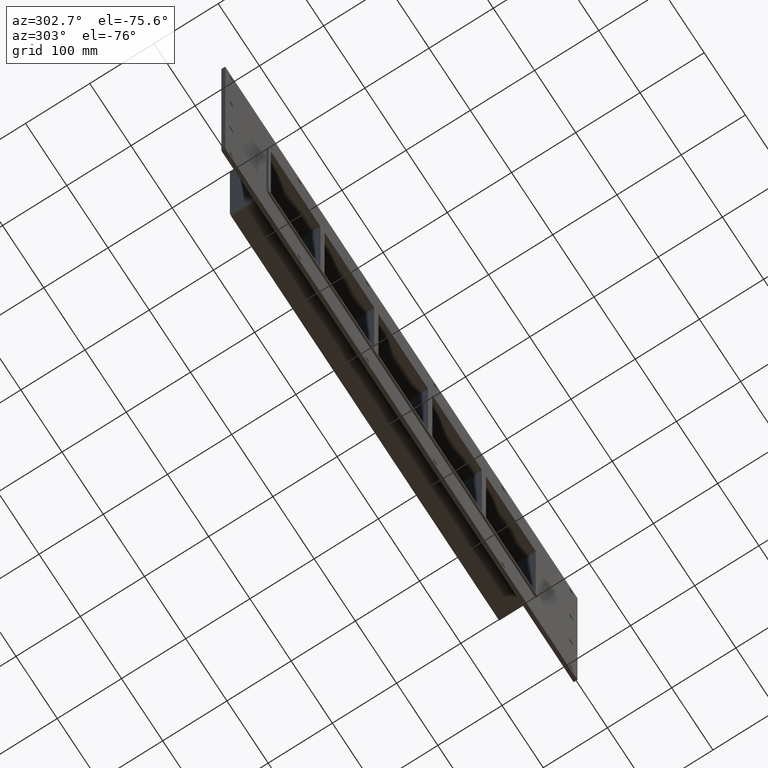
[diagram: clean part render]
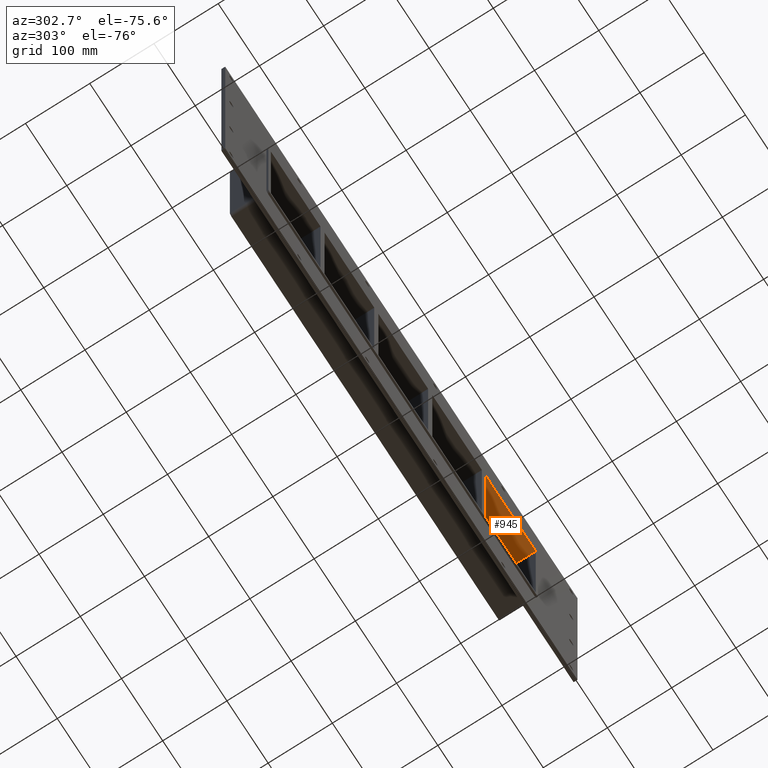
[diagram: same view with one face highlighted and labeled with its STEP entity id]
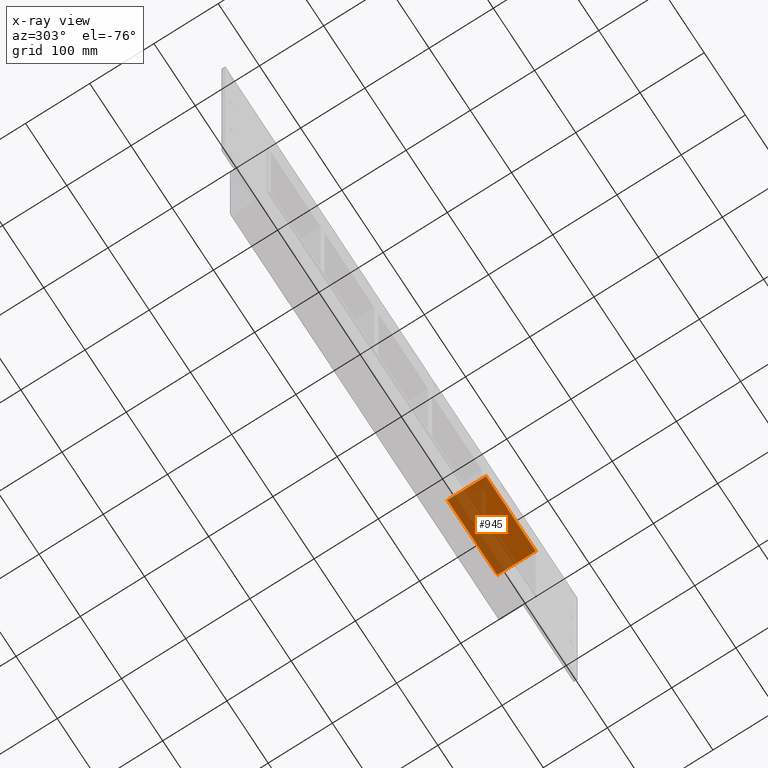
[diagram: x-ray of the same camera — body ghosted, the highlighted face saturated]
A machine part, auxiliary view. The second image highlights one B-rep face of the part: STEP entity #945.
The next image is the same camera in x-ray: the body ghosted, the highlighted face saturated — about 55% of this face is hidden behind the body in this view.
In plain terms, the highlighted planar face has unit normal (0, 0, 1).
Its self-contained STEP definition (entity closure, byte-faithful):
#561=CARTESIAN_POINT('',(200.74999999999278,-3.0,108.99999999999999));
#562=VERTEX_POINT('',#561);
#579=CARTESIAN_POINT('',(200.74999999999278,57.0,108.99999999999999));
#580=VERTEX_POINT('',#579);
#587=CARTESIAN_POINT('',(200.74999999999278,-3.0,109.0));
#588=DIRECTION('',(0.0,1.0,0.0));
#589=VECTOR('',#588,60.000000000000007);
#590=LINE('',#587,#589);
#591=EDGE_CURVE('',#562,#580,#590,.T.);
#915=CARTESIAN_POINT('',(-321.25000000000006,0.0,109.0));
#916=DIRECTION('',(0.0,0.0,1.0));
#917=DIRECTION('',(1.0,0.0,0.0));
#918=AXIS2_PLACEMENT_3D('',#915,#916,#917);
#919=PLANE('',#918);
#920=ORIENTED_EDGE('',*,*,#591,.T.);
#921=CARTESIAN_POINT('',(321.25000000000006,57.0,108.99999999999999));
#922=VERTEX_POINT('',#921);
#923=CARTESIAN_POINT('',(321.25000000000011,57.0,109.0));
#924=DIRECTION('',(-1.0,0.0,0.0));
#925=VECTOR('',#924,120.50000000000736);
#926=LINE('',#923,#925);
#927=EDGE_CURVE('',#922,#580,#926,.T.);
#928=ORIENTED_EDGE('',*,*,#927,.F.);
#929=CARTESIAN_POINT('',(321.25000000000006,-3.0,108.99999999999999));
#930=VERTEX_POINT('',#929);
#931=CARTESIAN_POINT('',(321.25000000000006,-3.0,109.0));
#932=DIRECTION('',(0.0,1.0,0.0));
#933=VECTOR('',#932,60.0);
#934=LINE('',#931,#933);
#935=EDGE_CURVE('',#930,#922,#934,.T.);
#936=ORIENTED_EDGE('',*,*,#935,.F.);
#937=CARTESIAN_POINT('',(200.74999999999275,-3.0,109.0));
#938=DIRECTION('',(1.0,0.0,0.0));
#939=VECTOR('',#938,120.50000000000736);
#940=LINE('',#937,#939);
#941=EDGE_CURVE('',#562,#930,#940,.T.);
#942=ORIENTED_EDGE('',*,*,#941,.F.);
#943=EDGE_LOOP('',(#920,#928,#936,#942));
#944=FACE_OUTER_BOUND('',#943,.T.);
#945=ADVANCED_FACE('',(#944),#919,.F.);